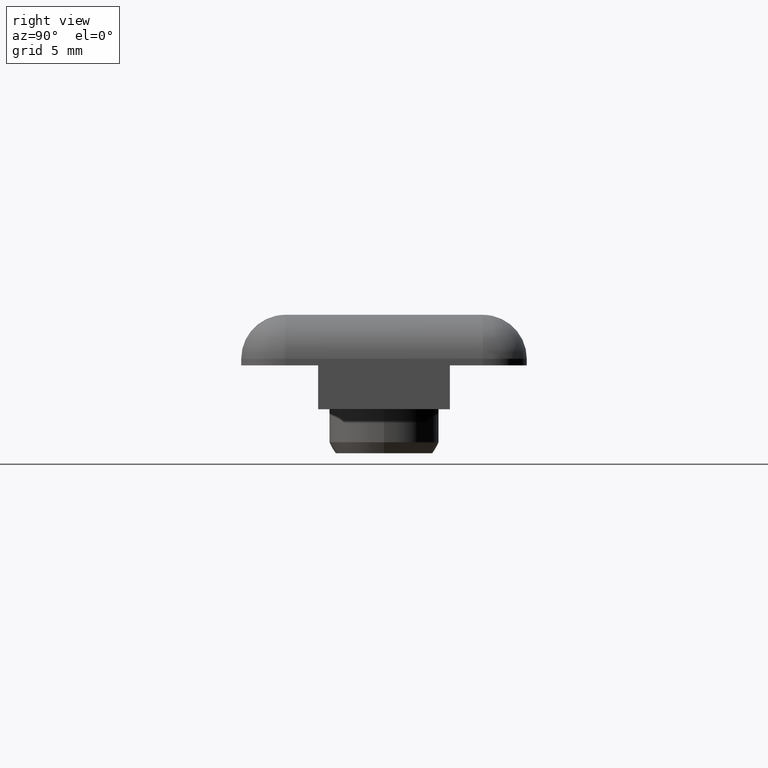
[diagram: clean part render]
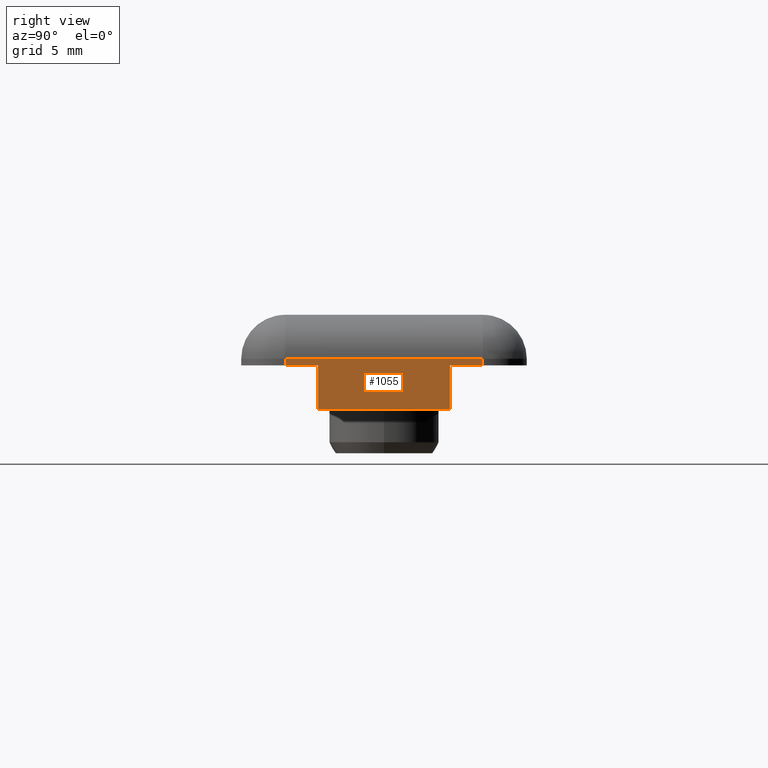
[diagram: same view with one face highlighted and labeled with its STEP entity id]
A machine part, right view. The second image highlights one B-rep face of the part: STEP entity #1055.
In plain terms, the highlighted planar face has unit normal (1, 0, 0).
Its self-contained STEP definition (entity closure, byte-faithful):
#49=CARTESIAN_POINT('',(15.000000000000110,4.500000000000000,0.0));
#50=VERTEX_POINT('',#49);
#58=CARTESIAN_POINT('',(15.000000000000110,3.0,0.0));
#59=VERTEX_POINT('',#58);
#60=CARTESIAN_POINT('',(15.000000000000110,3.0,0.0));
#61=DIRECTION('',(0.0,1.0,0.0));
#62=VECTOR('',#61,1.500000000000000);
#63=LINE('',#60,#62);
#64=EDGE_CURVE('',#59,#50,#63,.T.);
#82=CARTESIAN_POINT('',(15.000000000000110,-3.0,0.0));
#83=VERTEX_POINT('',#82);
#90=CARTESIAN_POINT('',(15.000000000000110,-4.500000000000000,0.0));
#91=VERTEX_POINT('',#90);
#92=CARTESIAN_POINT('',(15.000000000000110,-4.500000000000000,0.0));
#93=DIRECTION('',(0.0,1.0,0.0));
#94=VECTOR('',#93,1.500000000000000);
#95=LINE('',#92,#94);
#96=EDGE_CURVE('',#91,#83,#95,.T.);
#305=CARTESIAN_POINT('',(15.000000000000110,4.500000000000000,0.300000000000000));
#306=VERTEX_POINT('',#305);
#314=CARTESIAN_POINT('',(15.000000000000110,4.500000000000000,0.0));
#315=DIRECTION('',(0.0,0.0,1.0));
#316=VECTOR('',#315,0.300000000000000);
#317=LINE('',#314,#316);
#318=EDGE_CURVE('',#50,#306,#317,.T.);
#329=CARTESIAN_POINT('',(15.000000000000110,-4.500000000000000,0.300000000000000));
#330=VERTEX_POINT('',#329);
#331=CARTESIAN_POINT('',(15.000000000000110,-4.500000000000000,0.0));
#332=DIRECTION('',(0.0,0.0,1.0));
#333=VECTOR('',#332,0.300000000000000);
#334=LINE('',#331,#333);
#335=EDGE_CURVE('',#91,#330,#334,.T.);
#479=CARTESIAN_POINT('',(15.000000000000110,-4.500000000000000,0.300000000000000));
#480=DIRECTION('',(0.0,1.0,0.0));
#481=VECTOR('',#480,9.0);
#482=LINE('',#479,#481);
#483=EDGE_CURVE('',#330,#306,#482,.T.);
#949=CARTESIAN_POINT('',(15.000000000000110,-3.0,-2.0));
#950=VERTEX_POINT('',#949);
#951=CARTESIAN_POINT('',(15.000000000000110,-3.0,0.0));
#952=DIRECTION('',(0.0,0.0,-1.0));
#953=VECTOR('',#952,2.0);
#954=LINE('',#951,#953);
#955=EDGE_CURVE('',#83,#950,#954,.T.);
#1004=CARTESIAN_POINT('',(15.000000000000110,3.0,-2.0));
#1005=VERTEX_POINT('',#1004);
#1014=CARTESIAN_POINT('',(15.000000000000110,3.0,0.0));
#1015=DIRECTION('',(0.0,0.0,-1.0));
#1016=VECTOR('',#1015,2.0);
#1017=LINE('',#1014,#1016);
#1018=EDGE_CURVE('',#59,#1005,#1017,.T.);
#1028=CARTESIAN_POINT('',(15.000000000000110,3.0,-2.0));
#1029=DIRECTION('',(0.0,-1.0,0.0));
#1030=VECTOR('',#1029,6.0);
#1031=LINE('',#1028,#1030);
#1032=EDGE_CURVE('',#1005,#950,#1031,.T.);
#1040=CARTESIAN_POINT('',(15.000000000000110,-4.500167846679688,-2.000152587890625));
#1041=DIRECTION('',(1.0,0.0,0.0));
#1042=DIRECTION('',(0.0,1.0,0.0));
#1043=AXIS2_PLACEMENT_3D('',#1040,#1041,#1042);
#1044=PLANE('',#1043);
#1045=ORIENTED_EDGE('',*,*,#318,.T.);
#1046=ORIENTED_EDGE('',*,*,#483,.F.);
#1047=ORIENTED_EDGE('',*,*,#335,.F.);
#1048=ORIENTED_EDGE('',*,*,#96,.T.);
#1049=ORIENTED_EDGE('',*,*,#955,.T.);
#1050=ORIENTED_EDGE('',*,*,#1032,.F.);
#1051=ORIENTED_EDGE('',*,*,#1018,.F.);
#1052=ORIENTED_EDGE('',*,*,#64,.T.);
#1053=EDGE_LOOP('',(#1045,#1046,#1047,#1048,#1049,#1050,#1051,#1052));
#1054=FACE_OUTER_BOUND('',#1053,.T.);
#1055=ADVANCED_FACE('',(#1054),#1044,.T.);